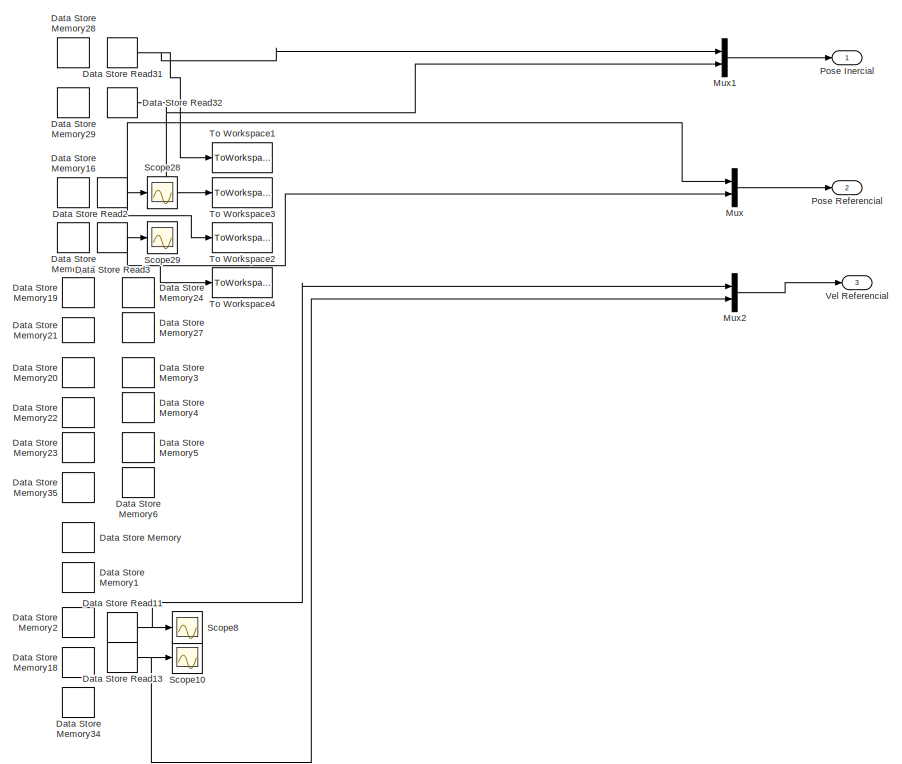
[diagram: root canvas - part 1/2, right side, full height]
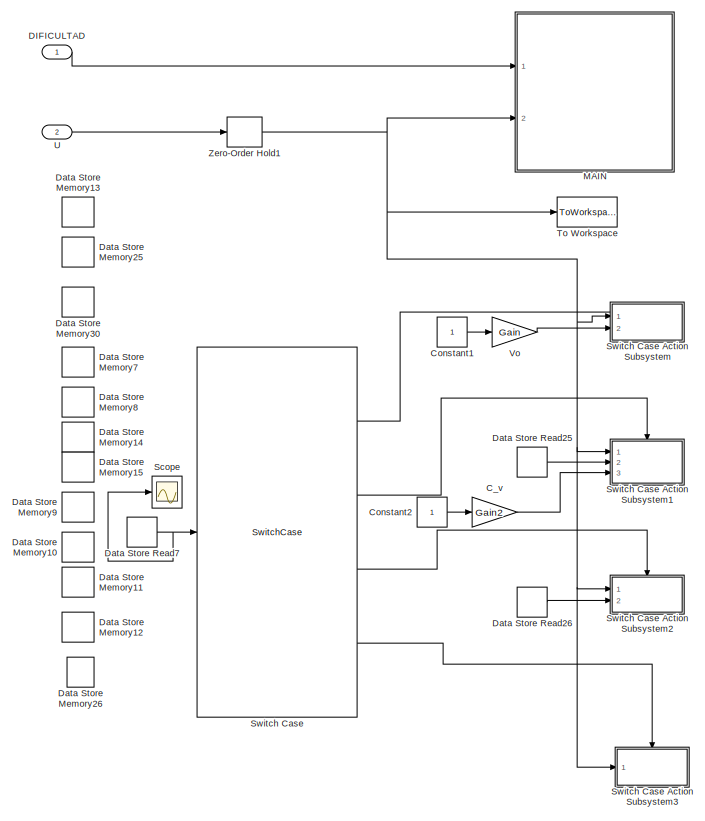
[diagram: root canvas - part 2/2, left side, full height]
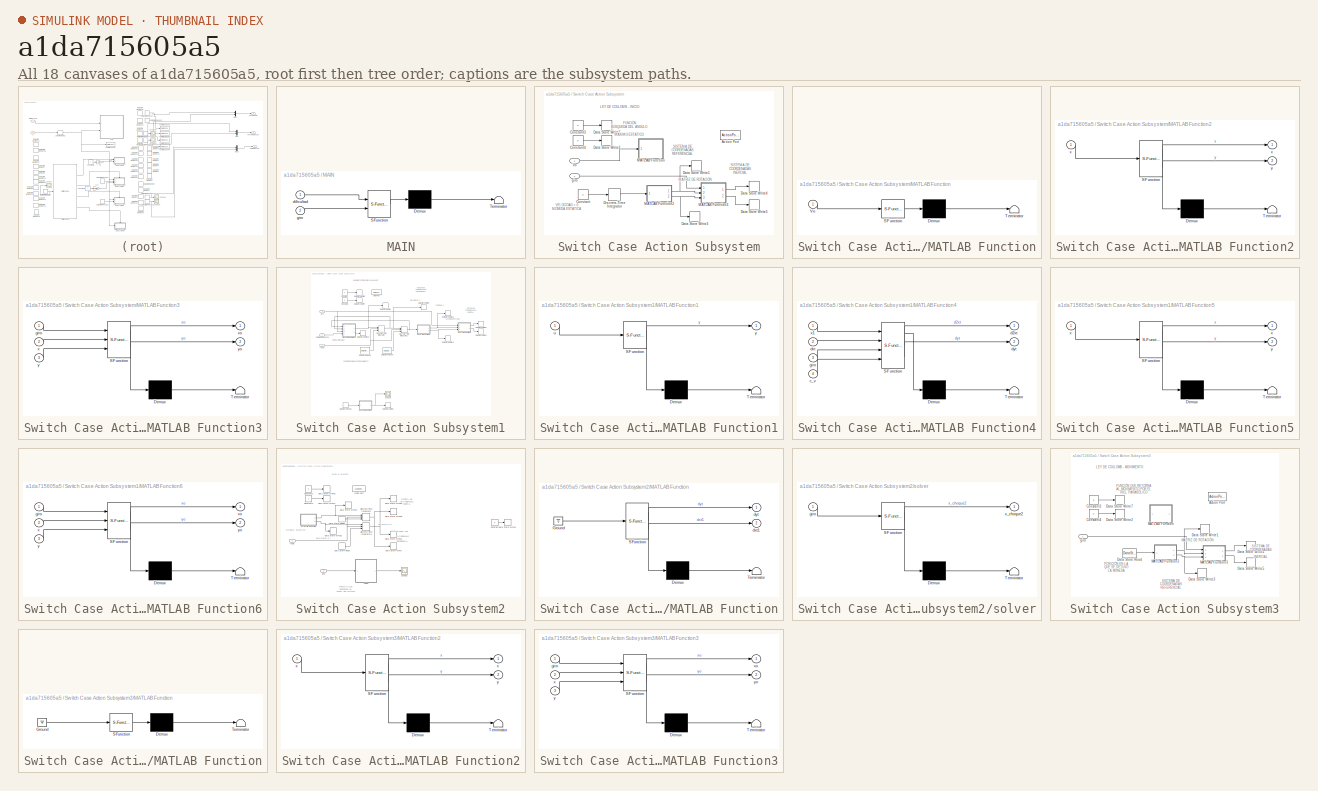
[diagram: thumbnail index - all 18 canvases of the model, root first then tree order]
MODEL slx_a1da715605a5
KIND model
CONFIG AbsTol = auto
CONFIG EnableMultiTasking = off
CONFIG FixedStep = auto
CONFIG MaxStep = auto
CONFIG MinStep = auto
CONFIG RelTol = 1e-3
CONFIG SampleTimeConstraint = Unconstrained
CONFIG SolverName = VariableStepAuto
CONFIG StartTime = 0.0
CONFIG StopTime = tsim
WORKSPACE source: mxarray member
WORKSPACE Gain = 0.05
WORKSPACE Gain2 = 0.0223
BLOCK [Gain] C_v
  Gain = Gain2
BLOCK [Constant] Constant1
BLOCK [Constant] Constant2
BLOCK [Inport] DIFICULTAD
  OutDataTypeStr = double
  PortDimensions = 1
  SamplingMode = Sample based
  SignalType = real
BLOCK [DataStoreMemory] Data Store Memory
  DataStoreName = cont
  InitialValue = 100
  OutDataTypeStr = double
  ReadBeforeWriteMsg = warning
  ShowAdditionalParam = off
  SignalType = real
  WriteAfterReadMsg = warning
  WriteAfterWriteMsg = warning
BLOCK [DataStoreMemory] Data Store Memory1
  DataStoreName = flag_ini
  InitialValue = 1
  OutDataTypeStr = double
  ReadBeforeWriteMsg = warning
  ShowAdditionalParam = off
  SignalType = real
  WriteAfterReadMsg = warning
  WriteAfterWriteMsg = warning
BLOCK [DataStoreMemory] Data Store Memory10
  DataStoreName = y_resp
  OutDataTypeStr = double
  ReadBeforeWriteMsg = warning
  ShowAdditionalParam = off
  SignalType = real
  WriteAfterReadMsg = warning
  WriteAfterWriteMsg = warning
BLOCK [DataStoreMemory] Data Store Memory11
  DataStoreName = dxt_resp
  OutDataTypeStr = double
  ReadBeforeWriteMsg = warning
  ShowAdditionalParam = off
  SignalType = real
  WriteAfterReadMsg = warning
  WriteAfterWriteMsg = warning
BLOCK [DataStoreMemory] Data Store Memory12
  DataStoreName = u
  OutDataTypeStr = double
  ReadBeforeWriteMsg = warning
  ShowAdditionalParam = off
  SignalType = real
  WriteAfterReadMsg = warning
  WriteAfterWriteMsg = warning
BLOCK [DataStoreMemory] Data Store Memory13
  DataStoreName = x_choque
  Dimensions = 1
  InitialValue = 1
  OutDataTypeStr = double
  ReadBeforeWriteMsg = warning
  ShowAdditionalParam = off
  SignalType = real
  WriteAfterReadMsg = warning
  WriteAfterWriteMsg = warning
BLOCK [DataStoreMemory] Data Store Memory14
  DataStoreName = x_desp
  OutDataTypeStr = double
  ReadBeforeWriteMsg = warning
  ShowAdditionalParam = off
  SignalType = real
  WriteAfterReadMsg = warning
  WriteAfterWriteMsg = warning
BLOCK [DataStoreMemory] Data Store Memory15
  DataStoreName = y_desp
  OutDataTypeStr = double
  ReadBeforeWriteMsg = warning
  ShowAdditionalParam = off
  SignalType = real
  WriteAfterReadMsg = warning
  WriteAfterWriteMsg = warning
BLOCK [DataStoreMemory] Data Store Memory16
  DataStoreName = x
  InitialValue = -0.11
  OutDataTypeStr = double
  ReadBeforeWriteMsg = warning
  ShowAdditionalParam = off
  SignalType = real
  WriteAfterReadMsg = warning
  WriteAfterWriteMsg = warning
BLOCK [DataStoreMemory] Data Store Memory17
  DataStoreName = y
  InitialValue = 0.106
  OutDataTypeStr = double
  ReadBeforeWriteMsg = warning
  ShowAdditionalParam = off
  SignalType = real
  WriteAfterReadMsg = warning
  WriteAfterWriteMsg = warning
BLOCK [DataStoreMemory] Data Store Memory18
  DataStoreName = piso
  InitialValue = 1
  OutDataTypeStr = double
  ReadBeforeWriteMsg = warning
  ShowAdditionalParam = off
  SignalType = real
  WriteAfterReadMsg = warning
  WriteAfterWriteMsg = warning
BLOCK [DataStoreMemory] Data Store Memory19
  DataStoreName = x_0_mov
  InitialValue = -0.1206
  OutDataTypeStr = double
  ReadBeforeWriteMsg = warning
  ShowAdditionalParam = off
  SignalType = real
  WriteAfterReadMsg = warning
  WriteAfterWriteMsg = warning
BLOCK [DataStoreMemory] Data Store Memory2
  DataStoreName = ang_moneda
  OutDataTypeStr = double
  ReadBeforeWriteMsg = warning
  ShowAdditionalParam = off
  SignalType = real
  WriteAfterReadMsg = warning
  WriteAfterWriteMsg = warning
BLOCK [DataStoreMemory] Data Store Memory20
  DataStoreName = dxt_0_mov
  OutDataTypeStr = double
  ReadBeforeWriteMsg = warning
  ShowAdditionalParam = off
  SignalType = real
  WriteAfterReadMsg = warning
  WriteAfterWriteMsg = warning
BLOCK [DataStoreMemory] Data Store Memory21
  DataStoreName = y_0_mov
  InitialValue = 0.106
  OutDataTypeStr = double
  ReadBeforeWriteMsg = warning
  ShowAdditionalParam = off
  SignalType = real
  WriteAfterReadMsg = warning
  WriteAfterWriteMsg = warning
BLOCK [DataStoreMemory] Data Store Memory22
  DataStoreName = reset
  OutDataTypeStr = double
  ReadBeforeWriteMsg = warning
  ShowAdditionalParam = off
  SignalType = real
  WriteAfterReadMsg = warning
  WriteAfterWriteMsg = warning
BLOCK [DataStoreMemory] Data Store Memory23
  DataStoreName = reset_caida
  OutDataTypeStr = double
  ReadBeforeWriteMsg = warning
  ShowAdditionalParam = off
  SignalType = real
  WriteAfterReadMsg = warning
  WriteAfterWriteMsg = warning
BLOCK [DataStoreMemory] Data Store Memory24
  DataStoreName = timer
  OutDataTypeStr = double
  ReadBeforeWriteMsg = warning
  ShowAdditionalParam = off
  SignalType = real
  WriteAfterReadMsg = warning
  WriteAfterWriteMsg = warning
BLOCK [DataStoreMemory] Data Store Memory25
  DataStoreName = y_choque
  Dimensions = 1
  OutDataTypeStr = double
  ReadBeforeWriteMsg = warning
  ShowAdditionalParam = off
  SignalType = real
  WriteAfterReadMsg = warning
  WriteAfterWriteMsg = warning
BLOCK [DataStoreMemory] Data Store Memory26
  DataStoreName = ang_moneda_caida
  OutDataTypeStr = double
  ReadBeforeWriteMsg = warning
  ShowAdditionalParam = off
  SignalType = real
  WriteAfterReadMsg = warning
  WriteAfterWriteMsg = warning
BLOCK [DataStoreMemory] Data Store Memory27
  DataStoreName = timer_mov
  OutDataTypeStr = double
  ReadBeforeWriteMsg = warning
  ShowAdditionalParam = off
  SignalType = real
  WriteAfterReadMsg = warning
  WriteAfterWriteMsg = warning
BLOCK [DataStoreMemory] Data Store Memory28
  DataStoreName = xo
  InitialValue = -0.1
  OutDataTypeStr = double
  ReadBeforeWriteMsg = warning
  ShowAdditionalParam = off
  SignalType = real
  WriteAfterReadMsg = warning
  WriteAfterWriteMsg = warning
BLOCK [DataStoreMemory] Data Store Memory29
  DataStoreName = yo
  InitialValue = 0.1092
  OutDataTypeStr = double
  ReadBeforeWriteMsg = warning
  ShowAdditionalParam = off
  SignalType = real
  WriteAfterReadMsg = warning
  WriteAfterWriteMsg = warning
BLOCK [DataStoreMemory] Data Store Memory3
  DataStoreName = dxt
  OutDataTypeStr = double
  ReadBeforeWriteMsg = warning
  ShowAdditionalParam = off
  SignalType = real
  WriteAfterReadMsg = warning
  WriteAfterWriteMsg = warning
BLOCK [DataStoreMemory] Data Store Memory30
  DataStoreName = timer_choque
  Dimensions = 1
  OutDataTypeStr = double
  ReadBeforeWriteMsg = warning
  ShowAdditionalParam = off
  SignalType = real
  WriteAfterReadMsg = warning
  WriteAfterWriteMsg = warning
BLOCK [DataStoreMemory] Data Store Memory34
  DataStoreName = x_reposo
  InitialValue = -0.11
  OutDataTypeStr = double
  ReadBeforeWriteMsg = warning
  ShowAdditionalParam = off
  SignalType = real
  WriteAfterReadMsg = warning
  WriteAfterWriteMsg = warning
BLOCK [DataStoreMemory] Data Store Memory35
  DataStoreName = reset_reposo
  OutDataTypeStr = double
  ReadBeforeWriteMsg = warning
  ShowAdditionalParam = off
  SignalType = real
  WriteAfterReadMsg = warning
  WriteAfterWriteMsg = warning
BLOCK [DataStoreMemory] Data Store Memory4
  DataStoreName = dyt
  OutDataTypeStr = double
  ReadBeforeWriteMsg = warning
  ShowAdditionalParam = off
  SignalType = real
  WriteAfterReadMsg = warning
  WriteAfterWriteMsg = warning
BLOCK [DataStoreMemory] Data Store Memory5
  DataStoreName = d2xt
  OutDataTypeStr = double
  ReadBeforeWriteMsg = warning
  ShowAdditionalParam = off
  SignalType = real
  WriteAfterReadMsg = warning
  WriteAfterWriteMsg = warning
BLOCK [DataStoreMemory] Data Store Memory6
  DataStoreName = d2yt
  OutDataTypeStr = double
  ReadBeforeWriteMsg = warning
  ShowAdditionalParam = off
  SignalType = real
  WriteAfterReadMsg = warning
  WriteAfterWriteMsg = warning
BLOCK [DataStoreMemory] Data Store Memory7
  DataStoreName = ang_caida
  OutDataTypeStr = double
  ReadBeforeWriteMsg = warning
  ShowAdditionalParam = off
  SignalType = real
  WriteAfterReadMsg = warning
  WriteAfterWriteMsg = warning
BLOCK [DataStoreMemory] Data Store Memory8
  DataStoreName = vel_caida
  OutDataTypeStr = double
  ReadBeforeWriteMsg = warning
  ShowAdditionalParam = off
  SignalType = real
  WriteAfterReadMsg = warning
  WriteAfterWriteMsg = warning
BLOCK [DataStoreMemory] Data Store Memory9
  DataStoreName = x_resp
  OutDataTypeStr = double
  ReadBeforeWriteMsg = warning
  ShowAdditionalParam = off
  SignalType = real
  WriteAfterReadMsg = warning
  WriteAfterWriteMsg = warning
BLOCK [DataStoreRead] Data Store Read11
  DataStoreName = dxt
  IndexOptions = Index vector (dialog)
  Indices = 1
  OutputSizes = 1
  Ports = [0, 1]
BLOCK [DataStoreRead] Data Store Read13
  DataStoreName = dyt
  IndexOptions = Index vector (dialog)
  Indices = 1
  OutputSizes = 1
  Ports = [0, 1]
BLOCK [DataStoreRead] Data Store Read2
  DataStoreName = x
  IndexOptions = Index vector (dialog)
  Indices = 1
  OutputSizes = 1
  Ports = [0, 1]
BLOCK [DataStoreRead] Data Store Read25
  DataStoreName = reset
  IndexOptions = Index vector (dialog)
  Indices = 1
  OutputSizes = 1
  Ports = [0, 1]
BLOCK [DataStoreRead] Data Store Read26
  DataStoreName = reset_caida
  IndexOptions = Index vector (dialog)
  Indices = 1
  OutputSizes = 1
  Ports = [0, 1]
BLOCK [DataStoreRead] Data Store Read3
  DataStoreName = y
  IndexOptions = Index vector (dialog)
  Indices = 1
  OutputSizes = 1
  Ports = [0, 1]
BLOCK [DataStoreRead] Data Store Read31
  DataStoreName = xo
  IndexOptions = Index vector (dialog)
  Indices = 1
  OutputSizes = 1
  Ports = [0, 1]
BLOCK [DataStoreRead] Data Store Read32
  DataStoreName = yo
  IndexOptions = Index vector (dialog)
  Indices = 1
  OutputSizes = 1
  Ports = [0, 1]
BLOCK [DataStoreRead] Data Store Read7
  DataStoreName = cont
  IndexOptions = Index vector (dialog)
  Indices = 1
  OutputSizes = 1
  Ports = [0, 1]
  SampleTime = Ts
BLOCK [SubSystem] MAIN
  ErrorFcn = Stateflow.Translate.translate
  MinAlgLoopOccurrences = on
  PermitHierarchicalResolution = ExplicitOnly
  Ports = [2]
  RequestExecContextInheritance = off
  SFBlockType = MATLAB Function
  SystemSampleTime = Ts
  TreatAsAtomicUnit = on
BLOCK [Demux] MAIN/ Demux 
  Outputs = 1
  Ports = [1, 1]
BLOCK [S-Function] MAIN/ SFunction 
  EnableBusSupport = on
  FunctionName = sf_sfun
  PortCounts = [2 1]
  Ports = [2, 1]
  SFcnIsStateOwnerBlock = off
  SFunctionDeploymentMode = off
  Tag = Stateflow S-Function 3
BLOCK [Terminator] MAIN/ Terminator 
BLOCK [Inport] MAIN/dificultad
BLOCK [Inport] MAIN/giro
  Port = 2
BLOCK [Mux] Mux
  DisplayOption = bar
  Inputs = 2
  Ports = [2, 1]
BLOCK [Mux] Mux1
  DisplayOption = bar
  Inputs = 2
  Ports = [2, 1]
BLOCK [Mux] Mux2
  DisplayOption = bar
  Inputs = 2
  Ports = [2, 1]
BLOCK [Outport] Pose Inercial
  OutDataTypeStr = double
  PortDimensions = 2
  SampleTime = Ts
  SamplingMode = Sample based
  SignalType = real
  VectorParamsAs1DForOutWhenUnconnected = off
BLOCK [Outport] Pose Referencial
  OutDataTypeStr = double
  Port = 2
  PortDimensions = 2
  SampleTime = Ts
  SamplingMode = Sample based
  SignalType = real
  VectorParamsAs1DForOutWhenUnconnected = off
BLOCK [Scope] Scope
  Floating = off
  NumInputPorts = 1
  Ports = [1]
  ScopeSpecificationString = Simulink.scopes.TimeScopeBlockCfg('CurrentConfiguration', extmgr.ConfigurationSet(extmgr.Configuration('Core','General UI',true),extmgr.Configuration('Core','Source UI',true),extmgr.Configuration('Sources','WiredSimulink',true,'DataLoggingVariableName','ScopeData1'),extmgr.Configuration('Visuals','Time Domain',true,'SerializedDisplays',{struct('MinYLimReal','-12.5','MaxYLimReal','112.5','YLabelRea...<+1405ch>
BLOCK [Scope] Scope10
  Floating = off
  NumInputPorts = 1
  Ports = [1]
  ScopeSpecificationString = Simulink.scopes.TimeScopeBlockCfg('CurrentConfiguration', extmgr.ConfigurationSet(extmgr.Configuration('Core','General UI',true),extmgr.Configuration('Core','Source UI',true),extmgr.Configuration('Sources','WiredSimulink',true,'DataLoggingVariableName','ScopeData2'),extmgr.Configuration('Visuals','Time Domain',true,'SerializedDisplays',{struct('MinYLimReal','-3.43906','MaxYLimReal','0.46436','YLab...<+1446ch>
BLOCK [Scope] Scope28
  Floating = off
  NumInputPorts = 1
  Ports = [1]
  ScopeSpecificationString = Simulink.scopes.TimeScopeBlockCfg('CurrentConfiguration', extmgr.ConfigurationSet(extmgr.Configuration('Core','General UI',true),extmgr.Configuration('Core','Source UI',true),extmgr.Configuration('Sources','WiredSimulink',true,'DataLoggingVariableName','ScopeData3'),extmgr.Configuration('Visuals','Time Domain',true,'SerializedDisplays',{struct('MinYLimReal','-0.11475','MaxYLimReal','-0.06722','YLa...<+1456ch>
BLOCK [Scope] Scope29
  Floating = off
  NumInputPorts = 1
  Ports = [1]
  ScopeSpecificationString = Simulink.scopes.TimeScopeBlockCfg('CurrentConfiguration', extmgr.ConfigurationSet(extmgr.Configuration('Core','General UI',true),extmgr.Configuration('Core','Source UI',true),extmgr.Configuration('Sources','WiredSimulink',true,'DataLoggingVariableName','ScopeData4'),extmgr.Configuration('Visuals','Time Domain',true,'SerializedDisplays',{struct('MinYLimReal','0.04701','MaxYLimReal','0.05633','YLabe...<+1444ch>
BLOCK [Scope] Scope8
  Floating = off
  NumInputPorts = 1
  Ports = [1]
  ScopeSpecificationString = Simulink.scopes.TimeScopeBlockCfg('CurrentConfiguration', extmgr.ConfigurationSet(extmgr.Configuration('Core','General UI',true),extmgr.Configuration('Core','Source UI',true),extmgr.Configuration('Sources','WiredSimulink',true,'DataLoggingVariableName','ScopeData5'),extmgr.Configuration('Visuals','Time Domain',true,'SerializedDisplays',{struct('MinYLimReal','-0.57978','MaxYLimReal','1.56342','YLab...<+1455ch>
BLOCK [SwitchCase] Switch Case
  CaseConditions = {100,0,1,2}
  Ports = [1, 4]
  ShowDefaultCase = off
BLOCK [SubSystem] Switch Case Action Subsystem
  Ports = [2, 0, 0, 0, 0, 0, 0, 1]
  RequestExecContextInheritance = off
  TreatAsAtomicUnit = on
BLOCK [ActionPort] Switch Case Action Subsystem/Action Port
  ActionPortLabel = case [ 100 ]:
BLOCK [Constant] Switch Case Action Subsystem/Constant
  Value = 0
BLOCK [Constant] Switch Case Action Subsystem/Constant3
  SampleTime = Ts
  Value = 0
BLOCK [Constant] Switch Case Action Subsystem/Constant4
  SampleTime = Ts
  Value = 0
BLOCK [DataStoreWrite] Switch Case Action Subsystem/Data Store Write1
  DataStoreName = x
  IndexOptions = Index vector (dialog)
  Indices = 1
  OutputSizes = 1
  Ports = [1]
  SampleTime = Ts
BLOCK [DataStoreWrite] Switch Case Action Subsystem/Data Store Write2
  DataStoreName = reset
  IndexOptions = Index vector (dialog)
  Indices = 1
  OutputSizes = 1
  Ports = [1]
  SampleTime = Ts
BLOCK [DataStoreWrite] Switch Case Action Subsystem/Data Store Write3
  DataStoreName = y
  IndexOptions = Index vector (dialog)
  Indices = 1
  OutputSizes = 1
  Ports = [1]
  SampleTime = Ts
BLOCK [DataStoreWrite] Switch Case Action Subsystem/Data Store Write4
  DataStoreName = xo
  IndexOptions = Index vector (dialog)
  Indices = 1
  OutputSizes = 1
  Ports = [1]
  SampleTime = Ts
BLOCK [DataStoreWrite] Switch Case Action Subsystem/Data Store Write5
  DataStoreName = yo
  IndexOptions = Index vector (dialog)
  Indices = 1
  OutputSizes = 1
  Ports = [1]
  SampleTime = Ts
BLOCK [DataStoreWrite] Switch Case Action Subsystem/Data Store Write7
  DataStoreName = reset_caida
  IndexOptions = Index vector (dialog)
  Indices = 1
  OutputSizes = 1
  Ports = [1]
  SampleTime = Ts
BLOCK [DiscreteIntegrator] Switch Case Action Subsystem/Discrete-Time Integrator
  ICPrevOutput = DiscIntNeverNeededParam
  ICPrevScaledInput = DiscIntNeverNeededParam
  InitialCondition = -0.11
  InitialConditionSetting = Auto
  Ports = [1, 1]
  SampleTime = Ts
BLOCK [SubSystem] Switch Case Action Subsystem/MATLAB Function
  ErrorFcn = Stateflow.Translate.translate
  PermitHierarchicalResolution = ExplicitOnly
  Ports = [1]
  RequestExecContextInheritance = off
  SFBlockType = MATLAB Function
  SystemSampleTime = Ts
  TreatAsAtomicUnit = on
BLOCK [Demux] Switch Case Action Subsystem/MATLAB Function/ Demux 
  Outputs = 1
  Ports = [1, 1]
BLOCK [S-Function] Switch Case Action Subsystem/MATLAB Function/ SFunction 
  EnableBusSupport = on
  FunctionName = sf_sfun
  PortCounts = [1 1]
  Ports = [1, 1]
  SFcnIsStateOwnerBlock = off
  SFunctionDeploymentMode = off
  Tag = Stateflow S-Function 28
BLOCK [Terminator] Switch Case Action Subsystem/MATLAB Function/ Terminator 
BLOCK [Inport] Switch Case Action Subsystem/MATLAB Function/Vo
BLOCK [SubSystem] Switch Case Action Subsystem/MATLAB Function2
  ErrorFcn = Stateflow.Translate.translate
  PermitHierarchicalResolution = ExplicitOnly
  Ports = [1, 2]
  RequestExecContextInheritance = off
  SFBlockType = MATLAB Function
  SystemSampleTime = Ts
  TreatAsAtomicUnit = on
BLOCK [Demux] Switch Case Action Subsystem/MATLAB Function2/ Demux 
  Outputs = 1
  Ports = [1, 1]
BLOCK [S-Function] Switch Case Action Subsystem/MATLAB Function2/ SFunction 
  EnableBusSupport = on
  FunctionName = sf_sfun
  PortCounts = [1 3]
  Ports = [1, 3]
  SFcnIsStateOwnerBlock = off
  SFunctionDeploymentMode = off
  Tag = Stateflow S-Function 29
BLOCK [Terminator] Switch Case Action Subsystem/MATLAB Function2/ Terminator 
BLOCK [Outport] Switch Case Action Subsystem/MATLAB Function2/x
  VectorParamsAs1DForOutWhenUnconnected = off
BLOCK [Inport] Switch Case Action Subsystem/MATLAB Function2/x 
BLOCK [Outport] Switch Case Action Subsystem/MATLAB Function2/y
  Port = 2
  VectorParamsAs1DForOutWhenUnconnected = off
BLOCK [SubSystem] Switch Case Action Subsystem/MATLAB Function3
  ErrorFcn = Stateflow.Translate.translate
  PermitHierarchicalResolution = ExplicitOnly
  Ports = [3, 2]
  RequestExecContextInheritance = off
  SFBlockType = MATLAB Function
  SystemSampleTime = Ts
  TreatAsAtomicUnit = on
BLOCK [Demux] Switch Case Action Subsystem/MATLAB Function3/ Demux 
  Outputs = 1
  Ports = [1, 1]
BLOCK [S-Function] Switch Case Action Subsystem/MATLAB Function3/ SFunction 
  EnableBusSupport = on
  FunctionName = sf_sfun
  PortCounts = [3 3]
  Ports = [3, 3]
  SFcnIsStateOwnerBlock = off
  SFunctionDeploymentMode = off
  Tag = Stateflow S-Function 30
BLOCK [Terminator] Switch Case Action Subsystem/MATLAB Function3/ Terminator 
BLOCK [Inport] Switch Case Action Subsystem/MATLAB Function3/giro
BLOCK [Inport] Switch Case Action Subsystem/MATLAB Function3/x
  Port = 2
BLOCK [Outport] Switch Case Action Subsystem/MATLAB Function3/xo
  VectorParamsAs1DForOutWhenUnconnected = off
BLOCK [Inport] Switch Case Action Subsystem/MATLAB Function3/y
  Port = 3
BLOCK [Outport] Switch Case Action Subsystem/MATLAB Function3/yo
  Port = 2
  VectorParamsAs1DForOutWhenUnconnected = off
BLOCK [Inport] Switch Case Action Subsystem/Vo
  Port = 2
BLOCK [Inport] Switch Case Action Subsystem/giro
  SampleTime = Ts
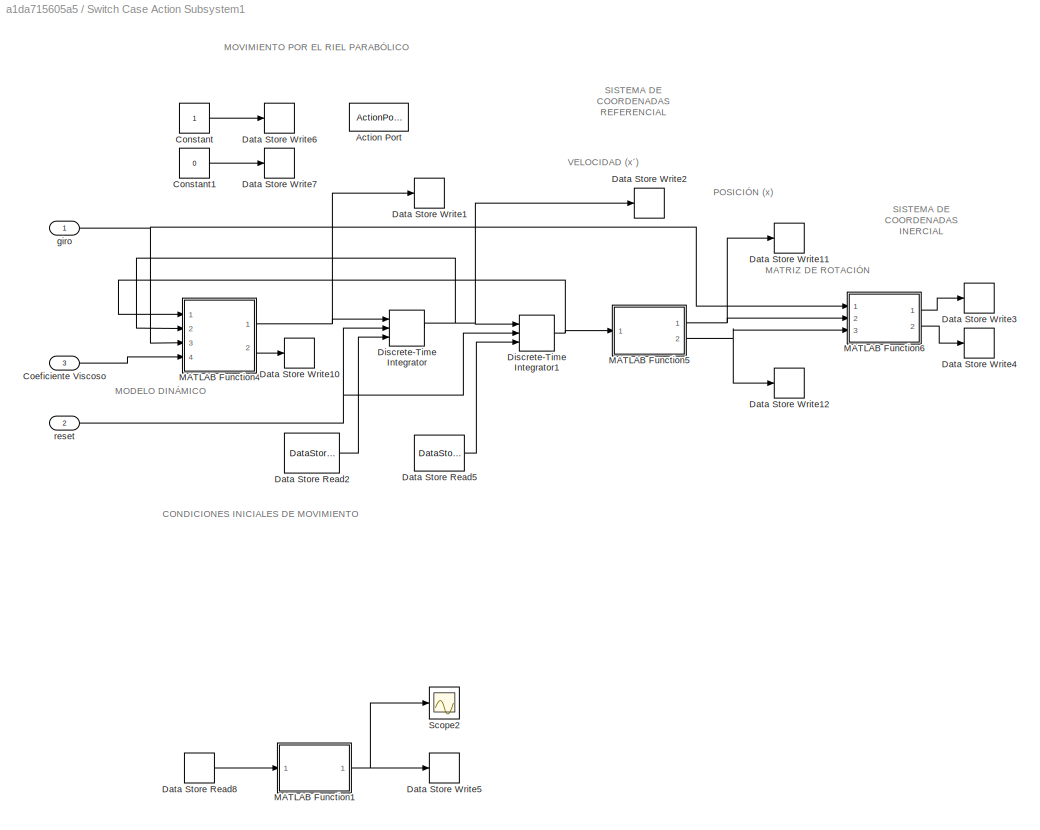
BLOCK [SubSystem] Switch Case Action Subsystem1
  Ports = [3, 0, 0, 0, 0, 0, 0, 1]
  RequestExecContextInheritance = off
  TreatAsAtomicUnit = on
BLOCK [ActionPort] Switch Case Action Subsystem1/Action Port
  ActionPortLabel = case [ 0 ]:
BLOCK [Inport] Switch Case Action Subsystem1/Coeficiente Viscoso
  Port = 3
BLOCK [Constant] Switch Case Action Subsystem1/Constant
  SampleTime = Ts
BLOCK [Constant] Switch Case Action Subsystem1/Constant1
  SampleTime = Ts
  Value = 0
BLOCK [DataStoreRead] Switch Case Action Subsystem1/Data Store Read2
  DataStoreName = dxt_0_mov
  IndexOptions = Index vector (dialog)
  Indices = 1
  OutputSizes = 1
  Ports = [0, 1]
  SampleTime = Ts
BLOCK [DataStoreRead] Switch Case Action Subsystem1/Data Store Read5
  DataStoreName = x_0_mov
  IndexOptions = Index vector (dialog)
  Indices = 1
  OutputSizes = 1
  Ports = [0, 1]
  SampleTime = Ts
BLOCK [DataStoreRead] Switch Case Action Subsystem1/Data Store Read8
  DataStoreName = timer
  IndexOptions = Index vector (dialog)
  Indices = 1
  OutputSizes = 1
  Ports = [0, 1]
  SampleTime = Ts
BLOCK [DataStoreWrite] Switch Case Action Subsystem1/Data Store Write1
  DataStoreName = d2xt
  IndexOptions = Index vector (dialog)
  Indices = 1
  OutputSizes = 1
  Ports = [1]
  SampleTime = Ts
BLOCK [DataStoreWrite] Switch Case Action Subsystem1/Data Store Write10
  DataStoreName = dyt
  IndexOptions = Index vector (dialog)
  Indices = 1
  OutputSizes = 1
  Ports = [1]
  SampleTime = Ts
BLOCK [DataStoreWrite] Switch Case Action Subsystem1/Data Store Write11
  DataStoreName = x
  IndexOptions = Index vector (dialog)
  Indices = 1
  OutputSizes = 1
  Ports = [1]
  SampleTime = Ts
BLOCK [DataStoreWrite] Switch Case Action Subsystem1/Data Store Write12
  DataStoreName = y
  IndexOptions = Index vector (dialog)
  Indices = 1
  OutputSizes = 1
  Ports = [1]
  SampleTime = Ts
BLOCK [DataStoreWrite] Switch Case Action Subsystem1/Data Store Write2
  DataStoreName = dxt
  IndexOptions = Index vector (dialog)
  Indices = 1
  OutputSizes = 1
  Ports = [1]
  SampleTime = Ts
BLOCK [DataStoreWrite] Switch Case Action Subsystem1/Data Store Write3
  DataStoreName = xo
  IndexOptions = Index vector (dialog)
  Indices = 1
  OutputSizes = 1
  Ports = [1]
  SampleTime = Ts
BLOCK [DataStoreWrite] Switch Case Action Subsystem1/Data Store Write4
  DataStoreName = yo
  IndexOptions = Index vector (dialog)
  Indices = 1
  OutputSizes = 1
  Ports = [1]
  SampleTime = Ts
BLOCK [DataStoreWrite] Switch Case Action Subsystem1/Data Store Write5
  DataStoreName = timer
  IndexOptions = Index vector (dialog)
  Indices = 1
  OutputSizes = 1
  Ports = [1]
BLOCK [DataStoreWrite] Switch Case Action Subsystem1/Data Store Write6
  DataStoreName = reset
  IndexOptions = Index vector (dialog)
  Indices = 1
  OutputSizes = 1
  Ports = [1]
BLOCK [DataStoreWrite] Switch Case Action Subsystem1/Data Store Write7
  DataStoreName = reset_caida
  IndexOptions = Index vector (dialog)
  Indices = 1
  OutputSizes = 1
  Ports = [1]
  SampleTime = Ts
BLOCK [DiscreteIntegrator] Switch Case Action Subsystem1/Discrete-Time Integrator
  ExternalReset = falling
  ICPrevOutput = DiscIntNeverNeededParam
  ICPrevScaledInput = DiscIntNeverNeededParam
  InitialCondition = -0.11
  InitialConditionSetting = Auto
  InitialConditionSource = external
  Ports = [3, 1]
  SampleTime = Ts
BLOCK [DiscreteIntegrator] Switch Case Action Subsystem1/Discrete-Time Integrator1
  ExternalReset = falling
  ICPrevOutput = DiscIntNeverNeededParam
  ICPrevScaledInput = DiscIntNeverNeededParam
  InitialCondition = -0.11
  InitialConditionSetting = Auto
  InitialConditionSource = external
  Ports = [3, 1]
  SampleTime = Ts
BLOCK [SubSystem] Switch Case Action Subsystem1/MATLAB Function1
  ErrorFcn = Stateflow.Translate.translate
  PermitHierarchicalResolution = ExplicitOnly
  Ports = [1, 1]
  RequestExecContextInheritance = off
  SFBlockType = MATLAB Function
  TreatAsAtomicUnit = on
BLOCK [Demux] Switch Case Action Subsystem1/MATLAB Function1/ Demux 
  Outputs = 1
  Ports = [1, 1]
BLOCK [S-Function] Switch Case Action Subsystem1/MATLAB Function1/ SFunction 
  EnableBusSupport = on
  FunctionName = sf_sfun
  PortCounts = [1 2]
  Ports = [1, 2]
  SFcnIsStateOwnerBlock = off
  SFunctionDeploymentMode = off
  Tag = Stateflow S-Function 31
BLOCK [Terminator] Switch Case Action Subsystem1/MATLAB Function1/ Terminator 
BLOCK [Inport] Switch Case Action Subsystem1/MATLAB Function1/u
BLOCK [Outport] Switch Case Action Subsystem1/MATLAB Function1/y
  VectorParamsAs1DForOutWhenUnconnected = off
BLOCK [SubSystem] Switch Case Action Subsystem1/MATLAB Function4
  ErrorFcn = Stateflow.Translate.translate
  PermitHierarchicalResolution = ExplicitOnly
  Ports = [4, 2]
  RequestExecContextInheritance = off
  SFBlockType = MATLAB Function
  SystemSampleTime = Ts
  TreatAsAtomicUnit = on
BLOCK [Demux] Switch Case Action Subsystem1/MATLAB Function4/ Demux 
  Outputs = 1
  Ports = [1, 1]
BLOCK [S-Function] Switch Case Action Subsystem1/MATLAB Function4/ SFunction 
  EnableBusSupport = on
  FunctionName = sf_sfun
  PortCounts = [4 3]
  Ports = [4, 3]
  SFcnIsStateOwnerBlock = off
  SFunctionDeploymentMode = off
  Tag = Stateflow S-Function 32
BLOCK [Terminator] Switch Case Action Subsystem1/MATLAB Function4/ Terminator 
BLOCK [Inport] Switch Case Action Subsystem1/MATLAB Function4/c_v
  Port = 4
BLOCK [Outport] Switch Case Action Subsystem1/MATLAB Function4/d2xt
  VectorParamsAs1DForOutWhenUnconnected = off
BLOCK [Inport] Switch Case Action Subsystem1/MATLAB Function4/dxt
  Port = 2
BLOCK [Outport] Switch Case Action Subsystem1/MATLAB Function4/dyt
  Port = 2
  VectorParamsAs1DForOutWhenUnconnected = off
BLOCK [Inport] Switch Case Action Subsystem1/MATLAB Function4/giro
  Port = 3
BLOCK [Inport] Switch Case Action Subsystem1/MATLAB Function4/x1
BLOCK [SubSystem] Switch Case Action Subsystem1/MATLAB Function5
  ErrorFcn = Stateflow.Translate.translate
  PermitHierarchicalResolution = ExplicitOnly
  Ports = [1, 2]
  RequestExecContextInheritance = off
  SFBlockType = MATLAB Function
  SystemSampleTime = Ts
  TreatAsAtomicUnit = on
BLOCK [Demux] Switch Case Action Subsystem1/MATLAB Function5/ Demux 
  Outputs = 1
  Ports = [1, 1]
BLOCK [S-Function] Switch Case Action Subsystem1/MATLAB Function5/ SFunction 
  EnableBusSupport = on
  FunctionName = sf_sfun
  PortCounts = [1 3]
  Ports = [1, 3]
  SFcnIsStateOwnerBlock = off
  SFunctionDeploymentMode = off
  Tag = Stateflow S-Function 33
BLOCK [Terminator] Switch Case Action Subsystem1/MATLAB Function5/ Terminator 
BLOCK [Outport] Switch Case Action Subsystem1/MATLAB Function5/x
  VectorParamsAs1DForOutWhenUnconnected = off
BLOCK [Inport] Switch Case Action Subsystem1/MATLAB Function5/x 
BLOCK [Outport] Switch Case Action Subsystem1/MATLAB Function5/y
  Port = 2
  VectorParamsAs1DForOutWhenUnconnected = off
BLOCK [SubSystem] Switch Case Action Subsystem1/MATLAB Function6
  ErrorFcn = Stateflow.Translate.translate
  PermitHierarchicalResolution = ExplicitOnly
  Ports = [3, 2]
  RequestExecContextInheritance = off
  SFBlockType = MATLAB Function
  SystemSampleTime = Ts
  TreatAsAtomicUnit = on
BLOCK [Demux] Switch Case Action Subsystem1/MATLAB Function6/ Demux 
  Outputs = 1
  Ports = [1, 1]
BLOCK [S-Function] Switch Case Action Subsystem1/MATLAB Function6/ SFunction 
  EnableBusSupport = on
  FunctionName = sf_sfun
  PortCounts = [3 3]
  Ports = [3, 3]
  SFcnIsStateOwnerBlock = off
  SFunctionDeploymentMode = off
  Tag = Stateflow S-Function 34
BLOCK [Terminator] Switch Case Action Subsystem1/MATLAB Function6/ Terminator 
BLOCK [Inport] Switch Case Action Subsystem1/MATLAB Function6/giro
BLOCK [Inport] Switch Case Action Subsystem1/MATLAB Function6/x
  Port = 2
BLOCK [Outport] Switch Case Action Subsystem1/MATLAB Function6/xo
  VectorParamsAs1DForOutWhenUnconnected = off
BLOCK [Inport] Switch Case Action Subsystem1/MATLAB Function6/y
  Port = 3
BLOCK [Outport] Switch Case Action Subsystem1/MATLAB Function6/yo
  Port = 2
  VectorParamsAs1DForOutWhenUnconnected = off
BLOCK [Scope] Switch Case Action Subsystem1/Scope2
  Floating = off
  NumInputPorts = 1
  Ports = [1]
  ScopeSpecificationString = Simulink.scopes.TimeScopeBlockCfg('CurrentConfiguration', extmgr.ConfigurationSet(extmgr.Configuration('Core','General UI',true),extmgr.Configuration('Core','Source UI',true),extmgr.Configuration('Sources','WiredSimulink',true,'DataLoggingVariableName','ScopeData1'),extmgr.Configuration('Visuals','Time Domain',true,'SerializedDisplays',{struct('MinYLimReal','-245.00000','MaxYLimReal','2215.00000',...<+1463ch>
BLOCK [Inport] Switch Case Action Subsystem1/giro
  OutDataTypeStr = double
  SampleTime = Ts
  SignalType = real
  VarSizeSig = No
BLOCK [Inport] Switch Case Action Subsystem1/reset 
  OutDataTypeStr = double
  Port = 2
  SampleTime = Ts
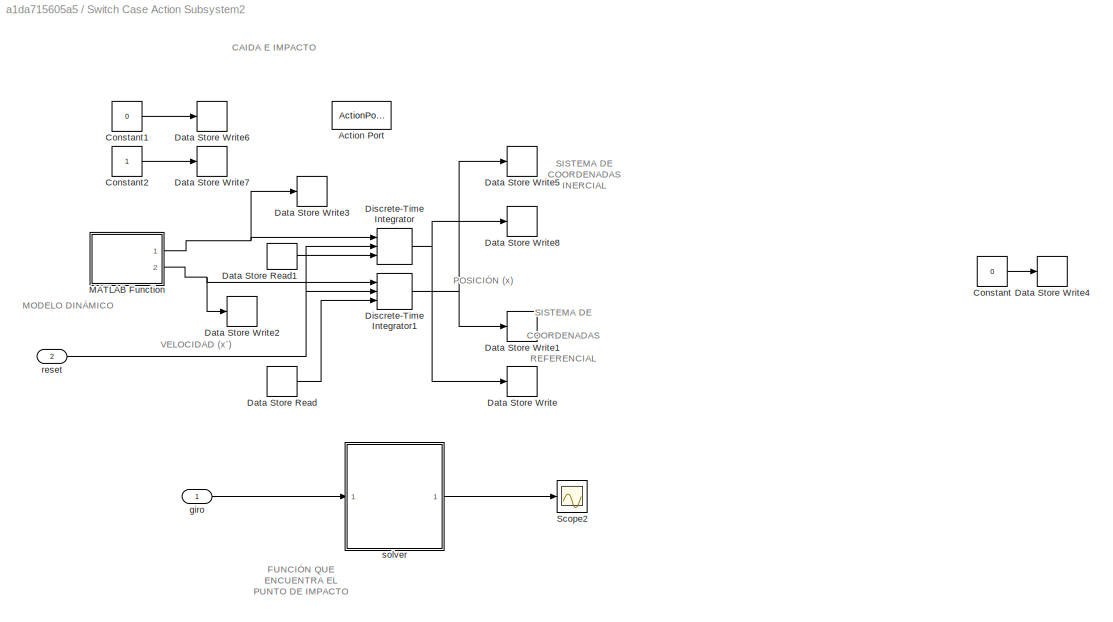
BLOCK [SubSystem] Switch Case Action Subsystem2
  Ports = [2, 0, 0, 0, 0, 0, 0, 1]
  RequestExecContextInheritance = off
  TreatAsAtomicUnit = on
BLOCK [ActionPort] Switch Case Action Subsystem2/Action Port
  ActionPortLabel = case [ 1 ]:
BLOCK [Constant] Switch Case Action Subsystem2/Constant
  SampleTime = Ts
  Value = 0
BLOCK [Constant] Switch Case Action Subsystem2/Constant1
  SampleTime = Ts
  Value = 0
BLOCK [Constant] Switch Case Action Subsystem2/Constant2
  SampleTime = Ts
BLOCK [DataStoreRead] Switch Case Action Subsystem2/Data Store Read
  DataStoreName = x_0_mov
  IndexOptions = Index vector (dialog)
  Indices = 1
  OutputSizes = 1
  Ports = [0, 1]
  SampleTime = Ts
BLOCK [DataStoreRead] Switch Case Action Subsystem2/Data Store Read1
  DataStoreName = y_0_mov
  IndexOptions = Index vector (dialog)
  Indices = 1
  OutputSizes = 1
  Ports = [0, 1]
  SampleTime = Ts
BLOCK [DataStoreWrite] Switch Case Action Subsystem2/Data Store Write
  DataStoreName = y
  IndexOptions = Index vector (dialog)
  Indices = 1
  OutputSizes = 1
  Ports = [1]
  SampleTime = Ts
BLOCK [DataStoreWrite] Switch Case Action Subsystem2/Data Store Write1
  DataStoreName = x
  IndexOptions = Index vector (dialog)
  Indices = 1
  OutputSizes = 1
  Ports = [1]
  SampleTime = Ts
BLOCK [DataStoreWrite] Switch Case Action Subsystem2/Data Store Write2
  DataStoreName = dxt
  IndexOptions = Index vector (dialog)
  Indices = 1
  OutputSizes = 1
  Ports = [1]
  SampleTime = Ts
BLOCK [DataStoreWrite] Switch Case Action Subsystem2/Data Store Write3
  DataStoreName = dyt
  IndexOptions = Index vector (dialog)
  Indices = 1
  OutputSizes = 1
  Ports = [1]
  SampleTime = Ts
BLOCK [DataStoreWrite] Switch Case Action Subsystem2/Data Store Write4
  DataStoreName = timer
  IndexOptions = Index vector (dialog)
  Indices = 1
  OutputSizes = 1
  Ports = [1]
  SampleTime = Ts
BLOCK [DataStoreWrite] Switch Case Action Subsystem2/Data Store Write5
  DataStoreName = xo
  IndexOptions = Index vector (dialog)
  Indices = 1
  OutputSizes = 1
  Ports = [1]
  SampleTime = Ts
BLOCK [DataStoreWrite] Switch Case Action Subsystem2/Data Store Write6
  DataStoreName = reset
  IndexOptions = Index vector (dialog)
  Indices = 1
  OutputSizes = 1
  Ports = [1]
  SampleTime = Ts
BLOCK [DataStoreWrite] Switch Case Action Subsystem2/Data Store Write7
  DataStoreName = reset_caida
  IndexOptions = Index vector (dialog)
  Indices = 1
  OutputSizes = 1
  Ports = [1]
  SampleTime = Ts
BLOCK [DataStoreWrite] Switch Case Action Subsystem2/Data Store Write8
  DataStoreName = yo
  IndexOptions = Index vector (dialog)
  Indices = 1
  OutputSizes = 1
  Ports = [1]
  SampleTime = Ts
BLOCK [DiscreteIntegrator] Switch Case Action Subsystem2/Discrete-Time Integrator
  ExternalReset = falling
  ICPrevOutput = DiscIntNeverNeededParam
  ICPrevScaledInput = DiscIntNeverNeededParam
  InitialCondition = -0.11
  InitialConditionSetting = Auto
  InitialConditionSource = external
  Ports = [3, 1]
  SampleTime = Ts
BLOCK [DiscreteIntegrator] Switch Case Action Subsystem2/Discrete-Time Integrator1
  ExternalReset = falling
  ICPrevOutput = DiscIntNeverNeededParam
  ICPrevScaledInput = DiscIntNeverNeededParam
  InitialCondition = -0.11
  InitialConditionSetting = Auto
  InitialConditionSource = external
  Ports = [3, 1]
  SampleTime = Ts
BLOCK [SubSystem] Switch Case Action Subsystem2/MATLAB Function
  ErrorFcn = Stateflow.Translate.translate
  PermitHierarchicalResolution = ExplicitOnly
  Ports = [0, 2]
  RequestExecContextInheritance = off
  SFBlockType = MATLAB Function
  SystemSampleTime = Ts
  TreatAsAtomicUnit = on
BLOCK [Demux] Switch Case Action Subsystem2/MATLAB Function/ Demux 
  Outputs = 1
  Ports = [1, 1]
BLOCK [Ground] Switch Case Action Subsystem2/MATLAB Function/ Ground 
BLOCK [S-Function] Switch Case Action Subsystem2/MATLAB Function/ SFunction 
  EnableBusSupport = on
  FunctionName = sf_sfun
  PortCounts = [1 3]
  Ports = [1, 3]
  SFcnIsStateOwnerBlock = off
  SFunctionDeploymentMode = off
  Tag = Stateflow S-Function 35
BLOCK [Terminator] Switch Case Action Subsystem2/MATLAB Function/ Terminator 
BLOCK [Outport] Switch Case Action Subsystem2/MATLAB Function/dxt1
  Port = 2
  VectorParamsAs1DForOutWhenUnconnected = off
BLOCK [Outport] Switch Case Action Subsystem2/MATLAB Function/dyt
  VectorParamsAs1DForOutWhenUnconnected = off
BLOCK [Scope] Switch Case Action Subsystem2/Scope2
  Floating = off
  NumInputPorts = 1
  Ports = [1]
  ScopeSpecificationString = Simulink.scopes.TimeScopeBlockCfg('CurrentConfiguration', extmgr.ConfigurationSet(extmgr.Configuration('Core','General UI',true),extmgr.Configuration('Core','Source UI',true),extmgr.Configuration('Sources','WiredSimulink',true,'DataLoggingVariableName','ScopeData1'),extmgr.Configuration('Visuals','Time Domain',true,'SerializedDisplays',{struct('MinYLimReal','-0.23745','MaxYLimReal','0.32747','YLab...<+1468ch>
BLOCK [Inport] Switch Case Action Subsystem2/giro
  SampleTime = Ts
BLOCK [Inport] Switch Case Action Subsystem2/reset
  Port = 2
  SampleTime = Ts
BLOCK [SubSystem] Switch Case Action Subsystem2/solver
  ErrorFcn = Stateflow.Translate.translate
  PermitHierarchicalResolution = ExplicitOnly
  Ports = [1, 1]
  RequestExecContextInheritance = off
  SFBlockType = MATLAB Function
  SystemSampleTime = Ts
  TreatAsAtomicUnit = on
BLOCK [Demux] Switch Case Action Subsystem2/solver/ Demux 
  Outputs = 1
  Ports = [1, 1]
BLOCK [S-Function] Switch Case Action Subsystem2/solver/ SFunction 
  EnableBusSupport = on
  FunctionName = sf_sfun
  PortCounts = [1 2]
  Ports = [1, 2]
  SFcnIsStateOwnerBlock = off
  SFunctionDeploymentMode = off
  Tag = Stateflow S-Function 36
BLOCK [Terminator] Switch Case Action Subsystem2/solver/ Terminator 
BLOCK [Inport] Switch Case Action Subsystem2/solver/giro
BLOCK [Outport] Switch Case Action Subsystem2/solver/x_choque2
  VectorParamsAs1DForOutWhenUnconnected = off
BLOCK [SubSystem] Switch Case Action Subsystem3
  Ports = [1, 0, 0, 0, 0, 0, 0, 1]
  RequestExecContextInheritance = off
  TreatAsAtomicUnit = on
BLOCK [ActionPort] Switch Case Action Subsystem3/Action Port
  ActionPortLabel = case [ 2 ]:
BLOCK [Constant] Switch Case Action Subsystem3/Constant3
  SampleTime = Ts
  Value = 0
BLOCK [Constant] Switch Case Action Subsystem3/Constant4
  SampleTime = Ts
  Value = 0
BLOCK [DataStoreRead] Switch Case Action Subsystem3/Data Store Read
  DataStoreName = x_reposo
  IndexOptions = Index vector (dialog)
  Indices = 1
  OutputSizes = 1
  Ports = [0, 1]
  SampleTime = Ts
BLOCK [DataStoreWrite] Switch Case Action Subsystem3/Data Store Write1
  DataStoreName = x
  IndexOptions = Index vector (dialog)
  Indices = 1
  OutputSizes = 1
  Ports = [1]
  SampleTime = Ts
BLOCK [DataStoreWrite] Switch Case Action Subsystem3/Data Store Write2
  DataStoreName = reset
  IndexOptions = Index vector (dialog)
  Indices = 1
  OutputSizes = 1
  Ports = [1]
  SampleTime = Ts
BLOCK [DataStoreWrite] Switch Case Action Subsystem3/Data Store Write3
  DataStoreName = y
  IndexOptions = Index vector (dialog)
  Indices = 1
  OutputSizes = 1
  Ports = [1]
  SampleTime = Ts
BLOCK [DataStoreWrite] Switch Case Action Subsystem3/Data Store Write4
  DataStoreName = xo
  IndexOptions = Index vector (dialog)
  Indices = 1
  OutputSizes = 1
  Ports = [1]
  SampleTime = Ts
BLOCK [DataStoreWrite] Switch Case Action Subsystem3/Data Store Write5
  DataStoreName = yo
  IndexOptions = Index vector (dialog)
  Indices = 1
  OutputSizes = 1
  Ports = [1]
  SampleTime = Ts
BLOCK [DataStoreWrite] Switch Case Action Subsystem3/Data Store Write7
  DataStoreName = reset_caida
  IndexOptions = Index vector (dialog)
  Indices = 1
  OutputSizes = 1
  Ports = [1]
  SampleTime = Ts
BLOCK [SubSystem] Switch Case Action Subsystem3/MATLAB Function
  ErrorFcn = Stateflow.Translate.translate
  PermitHierarchicalResolution = ExplicitOnly
  Ports = []
  RequestExecContextInheritance = off
  SFBlockType = MATLAB Function
  SystemSampleTime = Ts
  TreatAsAtomicUnit = on
BLOCK [Demux] Switch Case Action Subsystem3/MATLAB Function/ Demux 
  Outputs = 1
  Ports = [1, 1]
BLOCK [Ground] Switch Case Action Subsystem3/MATLAB Function/ Ground 
BLOCK [S-Function] Switch Case Action Subsystem3/MATLAB Function/ SFunction 
  EnableBusSupport = on
  FunctionName = sf_sfun
  PortCounts = [1 1]
  Ports = [1, 1]
  SFcnIsStateOwnerBlock = off
  SFunctionDeploymentMode = off
  Tag = Stateflow S-Function 37
BLOCK [Terminator] Switch Case Action Subsystem3/MATLAB Function/ Terminator 
BLOCK [SubSystem] Switch Case Action Subsystem3/MATLAB Function2
  ErrorFcn = Stateflow.Translate.translate
  PermitHierarchicalResolution = ExplicitOnly
  Ports = [1, 2]
  RequestExecContextInheritance = off
  SFBlockType = MATLAB Function
  SystemSampleTime = Ts
  TreatAsAtomicUnit = on
BLOCK [Demux] Switch Case Action Subsystem3/MATLAB Function2/ Demux 
  Outputs = 1
  Ports = [1, 1]
BLOCK [S-Function] Switch Case Action Subsystem3/MATLAB Function2/ SFunction 
  EnableBusSupport = on
  FunctionName = sf_sfun
  PortCounts = [1 3]
  Ports = [1, 3]
  SFcnIsStateOwnerBlock = off
  SFunctionDeploymentMode = off
  Tag = Stateflow S-Function 38
BLOCK [Terminator] Switch Case Action Subsystem3/MATLAB Function2/ Terminator 
BLOCK [Outport] Switch Case Action Subsystem3/MATLAB Function2/x
  VectorParamsAs1DForOutWhenUnconnected = off
BLOCK [Inport] Switch Case Action Subsystem3/MATLAB Function2/x 
BLOCK [Outport] Switch Case Action Subsystem3/MATLAB Function2/y
  Port = 2
  VectorParamsAs1DForOutWhenUnconnected = off
BLOCK [SubSystem] Switch Case Action Subsystem3/MATLAB Function3
  ErrorFcn = Stateflow.Translate.translate
  PermitHierarchicalResolution = ExplicitOnly
  Ports = [3, 2]
  RequestExecContextInheritance = off
  SFBlockType = MATLAB Function
  SystemSampleTime = Ts
  TreatAsAtomicUnit = on
BLOCK [Demux] Switch Case Action Subsystem3/MATLAB Function3/ Demux 
  Outputs = 1
  Ports = [1, 1]
BLOCK [S-Function] Switch Case Action Subsystem3/MATLAB Function3/ SFunction 
  EnableBusSupport = on
  FunctionName = sf_sfun
  PortCounts = [3 3]
  Ports = [3, 3]
  SFcnIsStateOwnerBlock = off
  SFunctionDeploymentMode = off
  Tag = Stateflow S-Function 39
BLOCK [Terminator] Switch Case Action Subsystem3/MATLAB Function3/ Terminator 
BLOCK [Inport] Switch Case Action Subsystem3/MATLAB Function3/giro
BLOCK [Inport] Switch Case Action Subsystem3/MATLAB Function3/x
  Port = 2
BLOCK [Outport] Switch Case Action Subsystem3/MATLAB Function3/xo
  VectorParamsAs1DForOutWhenUnconnected = off
BLOCK [Inport] Switch Case Action Subsystem3/MATLAB Function3/y
  Port = 3
BLOCK [Outport] Switch Case Action Subsystem3/MATLAB Function3/yo
  Port = 2
  VectorParamsAs1DForOutWhenUnconnected = off
BLOCK [Inport] Switch Case Action Subsystem3/giro
  SampleTime = Ts
BLOCK [ToWorkspace] To Workspace
  FixptAsFi = on
  MaxDataPoints = inf
  Ports = [1]
  SampleTime = Ts
  VariableName = giro_m
BLOCK [ToWorkspace] To Workspace1
  FixptAsFi = on
  MaxDataPoints = inf
  Ports = [1]
  SampleTime = Ts
  VariableName = xs
BLOCK [ToWorkspace] To Workspace2
  FixptAsFi = on
  MaxDataPoints = inf
  Ports = [1]
  SampleTime = Ts
  VariableName = xri
BLOCK [ToWorkspace] To Workspace3
  FixptAsFi = on
  MaxDataPoints = inf
  Ports = [1]
  SampleTime = Ts
  VariableName = ys
BLOCK [ToWorkspace] To Workspace4
  FixptAsFi = on
  MaxDataPoints = inf
  Ports = [1]
  SampleTime = Ts
  VariableName = yri
BLOCK [Inport] U
  OutDataTypeStr = double
  Port = 2
  PortDimensions = 1
  SampleTime = Ts
  SamplingMode = Sample based
  SignalType = real
BLOCK [Outport] Vel Referencial
  OutDataTypeStr = double
  Port = 3
  PortDimensions = 2
  SampleTime = Ts
  SamplingMode = Sample based
  SignalType = real
  VectorParamsAs1DForOutWhenUnconnected = off
BLOCK [Gain] Vo
  Gain = Gain
BLOCK [ZeroOrderHold] Zero-Order Hold1
  SampleTime = Ts*10
ANNOTATION Switch Case Action Subsystem: FUNCIÓN BÚSQUEDA DEL ÁNGULO MÁXIMO ESTÁTICO
ANNOTATION Switch Case Action Subsystem: SISTEMA DE COORDENADAS REFERENCIAL
ANNOTATION Switch Case Action Subsystem: SISTEMA DE COORDENADAS INERCIAL
ANNOTATION Switch Case Action Subsystem: LEY DE COULOMB - INICIO
ANNOTATION Switch Case Action Subsystem: MATRIZ DE ROTACIÓN
ANNOTATION Switch Case Action Subsystem: VELOCIDAD = 0 MONEDA ESTÁTICA
ANNOTATION Switch Case Action Subsystem1: SISTEMA DE COORDENADAS REFERENCIAL
ANNOTATION Switch Case Action Subsystem1: SISTEMA DE COORDENADAS INERCIAL
ANNOTATION Switch Case Action Subsystem1: MOVIMIENTO POR EL RIEL PARABÓLICO
ANNOTATION Switch Case Action Subsystem1: MATRIZ DE ROTACIÓN
ANNOTATION Switch Case Action Subsystem1: CONDICIONES INICIALES DE MOVIMIENTO
ANNOTATION Switch Case Action Subsystem1: MODELO DINÁMICO
ANNOTATION Switch Case Action Subsystem1: POSICIÓN (x)
ANNOTATION Switch Case Action Subsystem1: VELOCIDAD (x´)
ANNOTATION Switch Case Action Subsystem2: SISTEMA DE COORDENADAS REFERENCIAL
ANNOTATION Switch Case Action Subsystem2: SISTEMA DE COORDENADAS INERCIAL
ANNOTATION Switch Case Action Subsystem2: CAIDA E IMPACTO
ANNOTATION Switch Case Action Subsystem2: MODELO DINÁMICO
ANNOTATION Switch Case Action Subsystem2: POSICIÓN (x)
ANNOTATION Switch Case Action Subsystem2: VELOCIDAD (x´)
ANNOTATION Switch Case Action Subsystem2: FUNCIÓN QUE ENCUENTRA EL PUNTO DE IMPACTO
ANNOTATION Switch Case Action Subsystem3: SISTEMA DE COORDENADAS REFERENCIAL
ANNOTATION Switch Case Action Subsystem3: SISTEMA DE COORDENADAS INERCIAL
ANNOTATION Switch Case Action Subsystem3: MATRIZ DE ROTACIÓN
ANNOTATION Switch Case Action Subsystem3: POSICIÓN EN LA QUE SE DETUVO LA MONEDA
ANNOTATION Switch Case Action Subsystem3: LEY DE COULOMB - MOVIMIENTO
ANNOTATION Switch Case Action Subsystem3: FUNCIÓN QUE RETORNA AL MOVIMIENTO POR EL RIEL PARABÓLICO
LINE C_v:1 -> Switch Case Action Subsystem1:3
LINE Constant1:1 -> Vo:1
LINE Constant2:1 -> C_v:1
LINE DIFICULTAD:1 -> MAIN:1
NET Data Store Read11:1 -> Mux2:1, Scope8:1
NET Data Store Read13:1 -> Mux2:2, Scope10:1
LINE Data Store Read25:1 -> Switch Case Action Subsystem1:2
LINE Data Store Read26:1 -> Switch Case Action Subsystem2:2
NET Data Store Read2:1 -> Mux:1, Scope28:1, To Workspace2:1
NET Data Store Read31:1 -> Mux1:1, To Workspace1:1
NET Data Store Read32:1 -> Mux1:2, To Workspace3:1
NET Data Store Read3:1 -> Mux:2, Scope29:1, To Workspace4:1
NET Data Store Read7:1 -> Scope:1, Switch Case:1
LINE Mux1:1 -> Pose Inercial:1
LINE Mux2:1 -> Vel Referencial:1
LINE Mux:1 -> Pose Referencial:1
LINE Switch Case Action Subsystem/Constant3:1 -> Switch Case Action Subsystem/Data Store Write7:1
LINE Switch Case Action Subsystem/Constant4:1 -> Switch Case Action Subsystem/Data Store Write2:1
LINE Switch Case Action Subsystem/Constant:1 -> Switch Case Action Subsystem/Discrete-Time Integrator:1
LINE Switch Case Action Subsystem/Discrete-Time Integrator:1 -> Switch Case Action Subsystem/MATLAB Function2:1
NET Switch Case Action Subsystem/MATLAB Function2:1 -> Switch Case Action Subsystem/Data Store Write1:1, Switch Case Action Subsystem/MATLAB Function3:2
NET Switch Case Action Subsystem/MATLAB Function2:2 -> Switch Case Action Subsystem/Data Store Write3:1, Switch Case Action Subsystem/MATLAB Function3:3
LINE Switch Case Action Subsystem/MATLAB Function3:1 -> Switch Case Action Subsystem/Data Store Write4:1
LINE Switch Case Action Subsystem/MATLAB Function3:2 -> Switch Case Action Subsystem/Data Store Write5:1
LINE Switch Case Action Subsystem/Vo:1 -> Switch Case Action Subsystem/MATLAB Function:1
LINE Switch Case Action Subsystem/giro:1 -> Switch Case Action Subsystem/MATLAB Function3:1
LINE Switch Case Action Subsystem1/Coeficiente Viscoso:1 -> Switch Case Action Subsystem1/MATLAB Function4:4
LINE Switch Case Action Subsystem1/Constant1:1 -> Switch Case Action Subsystem1/Data Store Write7:1
LINE Switch Case Action Subsystem1/Constant:1 -> Switch Case Action Subsystem1/Data Store Write6:1
LINE Switch Case Action Subsystem1/Data Store Read2:1 -> Switch Case Action Subsystem1/Discrete-Time Integrator:3
LINE Switch Case Action Subsystem1/Data Store Read5:1 -> Switch Case Action Subsystem1/Discrete-Time Integrator1:3
LINE Switch Case Action Subsystem1/Data Store Read8:1 -> Switch Case Action Subsystem1/MATLAB Function1:1
NET Switch Case Action Subsystem1/Discrete-Time Integrator1:1 -> Switch Case Action Subsystem1/MATLAB Function4:1, Switch Case Action Subsystem1/MATLAB Function5:1
NET Switch Case Action Subsystem1/Discrete-Time Integrator:1 -> Switch Case Action Subsystem1/Data Store Write2:1, Switch Case Action Subsystem1/Discrete-Time Integrator1:1, Switch Case Action Subsystem1/MATLAB Function4:2
NET Switch Case Action Subsystem1/MATLAB Function1:1 -> Switch Case Action Subsystem1/Data Store Write5:1, Switch Case Action Subsystem1/Scope2:1
NET Switch Case Action Subsystem1/MATLAB Function4:1 -> Switch Case Action Subsystem1/Data Store Write1:1, Switch Case Action Subsystem1/Discrete-Time Integrator:1
LINE Switch Case Action Subsystem1/MATLAB Function4:2 -> Switch Case Action Subsystem1/Data Store Write10:1
NET Switch Case Action Subsystem1/MATLAB Function5:1 -> Switch Case Action Subsystem1/Data Store Write11:1, Switch Case Action Subsystem1/MATLAB Function6:2
NET Switch Case Action Subsystem1/MATLAB Function5:2 -> Switch Case Action Subsystem1/Data Store Write12:1, Switch Case Action Subsystem1/MATLAB Function6:3
LINE Switch Case Action Subsystem1/MATLAB Function6:1 -> Switch Case Action Subsystem1/Data Store Write3:1
LINE Switch Case Action Subsystem1/MATLAB Function6:2 -> Switch Case Action Subsystem1/Data Store Write4:1
NET Switch Case Action Subsystem1/giro:1 -> Switch Case Action Subsystem1/MATLAB Function4:3, Switch Case Action Subsystem1/MATLAB Function6:1
NET Switch Case Action Subsystem1/reset :1 -> Switch Case Action Subsystem1/Discrete-Time Integrator1:2, Switch Case Action Subsystem1/Discrete-Time Integrator:2
LINE Switch Case Action Subsystem2/Constant1:1 -> Switch Case Action Subsystem2/Data Store Write6:1
LINE Switch Case Action Subsystem2/Constant2:1 -> Switch Case Action Subsystem2/Data Store Write7:1
LINE Switch Case Action Subsystem2/Constant:1 -> Switch Case Action Subsystem2/Data Store Write4:1
LINE Switch Case Action Subsystem2/Data Store Read1:1 -> Switch Case Action Subsystem2/Discrete-Time Integrator:3
LINE Switch Case Action Subsystem2/Data Store Read:1 -> Switch Case Action Subsystem2/Discrete-Time Integrator1:3
NET Switch Case Action Subsystem2/Discrete-Time Integrator1:1 -> Switch Case Action Subsystem2/Data Store Write1:1, Switch Case Action Subsystem2/Data Store Write5:1
NET Switch Case Action Subsystem2/Discrete-Time Integrator:1 -> Switch Case Action Subsystem2/Data Store Write8:1, Switch Case Action Subsystem2/Data Store Write:1
NET Switch Case Action Subsystem2/MATLAB Function:1 -> Switch Case Action Subsystem2/Data Store Write3:1, Switch Case Action Subsystem2/Discrete-Time Integrator:1
NET Switch Case Action Subsystem2/MATLAB Function:2 -> Switch Case Action Subsystem2/Data Store Write2:1, Switch Case Action Subsystem2/Discrete-Time Integrator1:1
LINE Switch Case Action Subsystem2/giro:1 -> Switch Case Action Subsystem2/solver:1
NET Switch Case Action Subsystem2/reset:1 -> Switch Case Action Subsystem2/Discrete-Time Integrator1:2, Switch Case Action Subsystem2/Discrete-Time Integrator:2
LINE Switch Case Action Subsystem2/solver:1 -> Switch Case Action Subsystem2/Scope2:1
LINE Switch Case Action Subsystem3/Constant3:1 -> Switch Case Action Subsystem3/Data Store Write7:1
LINE Switch Case Action Subsystem3/Constant4:1 -> Switch Case Action Subsystem3/Data Store Write2:1
LINE Switch Case Action Subsystem3/Data Store Read:1 -> Switch Case Action Subsystem3/MATLAB Function2:1
NET Switch Case Action Subsystem3/MATLAB Function2:1 -> Switch Case Action Subsystem3/Data Store Write1:1, Switch Case Action Subsystem3/MATLAB Function3:2
NET Switch Case Action Subsystem3/MATLAB Function2:2 -> Switch Case Action Subsystem3/Data Store Write3:1, Switch Case Action Subsystem3/MATLAB Function3:3
LINE Switch Case Action Subsystem3/MATLAB Function3:1 -> Switch Case Action Subsystem3/Data Store Write4:1
LINE Switch Case Action Subsystem3/MATLAB Function3:2 -> Switch Case Action Subsystem3/Data Store Write5:1
LINE Switch Case Action Subsystem3/giro:1 -> Switch Case Action Subsystem3/MATLAB Function3:1
LINE Switch Case:1 -> Switch Case Action Subsystem:ifaction
LINE Switch Case:2 -> Switch Case Action Subsystem1:ifaction
LINE Switch Case:3 -> Switch Case Action Subsystem2:ifaction
LINE Switch Case:4 -> Switch Case Action Subsystem3:ifaction
LINE U:1 -> Zero-Order Hold1:1
LINE Vo:1 -> Switch Case Action Subsystem:2
NET Zero-Order Hold1:1 -> MAIN:2, Switch Case Action Subsystem1:1, Switch Case Action Subsystem2:1, Switch Case Action Subsystem3:1, Switch Case Action Subsystem:1, To Workspace:1
note: NET lines group one-source signal fan-out (src -> all destinations, sorted); 1:1 wires keep LINE
CHART Switch Case Action
Subsystem/MATLAB Function states=1 transitions=1
  STATE_LABEL 'eML_blk_kernel()'
  STATE_LABEL 'SCRIPT:\nfunction fcn(Vo)\nglobal cont;\nglobal dxt;\n\nglobal ang_moneda;\nglobal flag_ini;\nglobal reset;\nglobal dxt_0_mov;\nglobal x_0_mov;\n\n\n\nif (( flag_ini==1) && (ang_moneda < 0.03)) \n    cont=0;\n    x_0_mov=-0.107;\n    dxt_0_mov=Vo; %0.05\n    reset=0;\nelse\n    cont=100;\n    x_0_mov=-0.11;\n    dxt=0;\nend  \n\n\n'
CHART Switch Case Action
Subsystem/MATLAB Function2 states=1 transitions=1
  STATE_LABEL 'eML_blk_kernel()'
  STATE_LABEL 'SCRIPT:\nfunction [x,y] = salida(x)\npiso=1;\ny=0;\nif (piso==1)\n    y=-0.54*x^2+0.1143;\nelse\n    if (piso==2)\n        y=-0.54*x^2+0.0686;\n    else\n        if (piso==3)\n           y=-0.54*x^2+0.0229; \n        end\n    end\nend\n\n'
CHART Switch Case Action
Subsystem/MATLAB Function3 states=1 transitions=1
  STATE_LABEL 'eML_blk_kernel()'
  STATE_LABEL 'SCRIPT:\nfunction [xo,yo] = rotacion(giro,x,y)\nxo=x*cos(giro)-y*sin(giro);\nyo=x*sin(giro)+y*cos(giro);\n\n'
CHART Switch Case Action
Subsystem1/MATLAB Function1 states=1 transitions=1
  STATE_LABEL 'eML_blk_kernel()'
  STATE_LABEL 'SCRIPT:\nfunction y = fcn(u)\ny = u+1;\n'
CHART Switch Case Action
Subsystem1/MATLAB Function4 states=1 transitions=1
  STATE_LABEL 'eML_blk_kernel()'
  STATE_LABEL 'SCRIPT:\nfunction [d2xt,dyt]=fcn(x1,dxt,giro,c_v)\ng=9.8;\nM=0.007;\nc=c_v; %0.01\nd2xt=(M*g*-sin(atan(-1.08*x1)+giro)-c*dxt)/(M);\ndyt=-1.08*x1*dxt;\n\n'
CHART Switch Case Action
Subsystem1/MATLAB Function5 states=1 transitions=1
  STATE_LABEL 'eML_blk_kernel()'
  STATE_LABEL 'SCRIPT:\nfunction [x,y] = salida(x)\nglobal piso;\ny=0;\nswitch piso\n    case 1\n        y=-0.54*x^2+0.1143;\n    case 2\n        y=-0.54*x^2+0.0686;\n    case 3\n        y=-0.54*x^2+0.0229;\n    case 4\n        y=-0.54*x^2-0.0229;\n    case 5\n        y=-0.54*x^2-0.0686;\n    case 6\n        y=-0.54*x^2-0.1143; \n    case 7\n        y=-0.54*x^2-0.16;\nend\n\n'
CHART Switch Case Action
Subsystem1/MATLAB Function6 states=1 transitions=1
  STATE_LABEL 'eML_blk_kernel()'
  STATE_LABEL 'SCRIPT:\nfunction [xo,yo] = rotacion(giro,x,y)\nxo=x*cos(giro)-y*sin(giro);\nyo=x*sin(giro)+y*cos(giro);\n\n'
CHART Switch Case Action
Subsystem2/MATLAB Function states=1 transitions=1
  STATE_LABEL 'eML_blk_kernel()'
  STATE_LABEL 'SCRIPT:\nfunction [dyt,dxt1]  = caida\n\nglobal ang_caida;\nglobal vel_caida;\nglobal xo;\nglobal d2yt;\nglobal x_resp;\nglobal d2xt;\nglobal piso;\n\nd2xt=0;\ndesp=x_resp;\ng=9.8;\nif (piso ==1 || piso==3 ||piso==5 || piso==7)\n    dxt1=vel_caida*(cos(ang_caida));\nelse\n    dxt1=-vel_caida*(cos(ang_caida));\nend\ndyt=(tan(ang_caida)-((g*(xo))/(vel_caida^2*(cos(ang_caida))^2))+((desp*g)/(vel_caida^2*(cos(ang_caida)...<+32ch>'
CHART Switch Case Action
Subsystem2/solver states=1 transitions=1
  STATE_LABEL 'eML_blk_kernel()'
  STATE_LABEL "SCRIPT:\nfunction x_choque2 = fcn(giro)\n\nx_choque2=zeros(4,1);\n% y1=0;\ncoder.extrinsic('solver');\na=cos(giro); b=sin(giro);\nglobal vel_caida;\nglobal ang_caida;\nglobal x_choque;\nglobal y_choque;\nglobal timer_choque;\nglobal x_resp;\nglobal y_resp;\nglobal piso;\ntimer_choque=timer_choque+1;\n\n\n[x_choque,y_choque,x_choque2]=solver(a,b,vel_caida,ang_caida,x_resp,y_resp,piso,timer_choque);\n\n% PGP - error\n\n"
CHART Switch Case Action
Subsystem3/MATLAB Function states=1 transitions=1
  STATE_LABEL 'eML_blk_kernel()'
  STATE_LABEL 'SCRIPT:\nfunction fcn\nglobal ang_moneda;\nglobal cont;\nglobal x_0_mov;\nglobal x;\nglobal dxt_0_mov;\nglobal reset;\nglobal timer_mov;\n\nif ((ang_moneda < -0.02 || ang_moneda > 0.02))\n    cont=0;\n    x_0_mov=x;\n    dxt_0_mov=0;\n    reset=0;\n    timer_mov=0;\nend\n\nend  \n\n\n'
CHART Switch Case Action
Subsystem3/MATLAB Function2 states=1 transitions=1
  STATE_LABEL 'eML_blk_kernel()'
  STATE_LABEL 'SCRIPT:\nfunction [x,y] = salida(x)\nglobal piso;\ny=0;\nif (piso==1)\n    y=-0.54*x^2+0.1143;\nelse\n    if (piso==2)\n        y=-0.54*x^2+0.0686;\n    else\n        if (piso==3)\n           y=-0.54*x^2+0.0229; \n        else\n           if (piso==4)\n                y=-0.54*x^2-0.0229; \n           else\n               if (piso==5)\n                    y=-0.54*x^2-0.0686;\n               else\n                   i...<+271ch>'
CHART Switch Case Action
Subsystem3/MATLAB Function3 states=1 transitions=1
  STATE_LABEL 'eML_blk_kernel()'
  STATE_LABEL 'SCRIPT:\nfunction [xo,yo] = rotacion(giro,x,y)\nxo=x*cos(giro)-y*sin(giro);\nyo=x*sin(giro)+y*cos(giro);\n\n'
CHART MAIN states=1 transitions=1
  STATE_LABEL 'eML_blk_kernel()'
  STATE_LABEL "SCRIPT:\nfunction monza_tfm(dificultad,giro)\ncoder.extrinsic('gcs');\ncoder.extrinsic('set_param');\naux=0;\n%*********************VARIABLES GLOBALES**********************************\nglobal cont;\nglobal xo;\nglobal yo;\nglobal ang_moneda;\nglobal flag_ini;\nglobal vel_caida;\nglobal ang_caida;\nglobal ang_moneda_caida;\nglobal x_resp;\nglobal y_resp;\nglobal dyt;\nglobal dxt;\nglobal x_choque;\nglobal x;\nglobal ...<+3608ch>"
CHART  states=0 transitions=0
CHART  states=0 transitions=0
CHART  states=0 transitions=0
CHART  states=0 transitions=0
CHART  states=0 transitions=0
CHART  states=0 transitions=0
CHART  states=0 transitions=0
CHART  states=0 transitions=0
CHART  states=0 transitions=0
CHART  states=0 transitions=0
CHART  states=0 transitions=0
CHART  states=0 transitions=0
CHART  states=0 transitions=0
